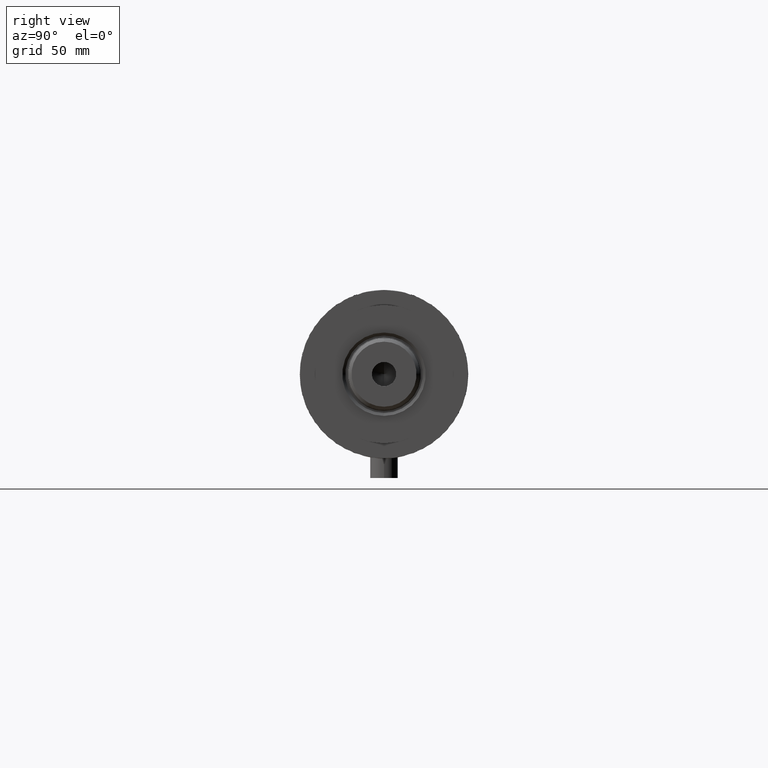
[diagram: clean part render]
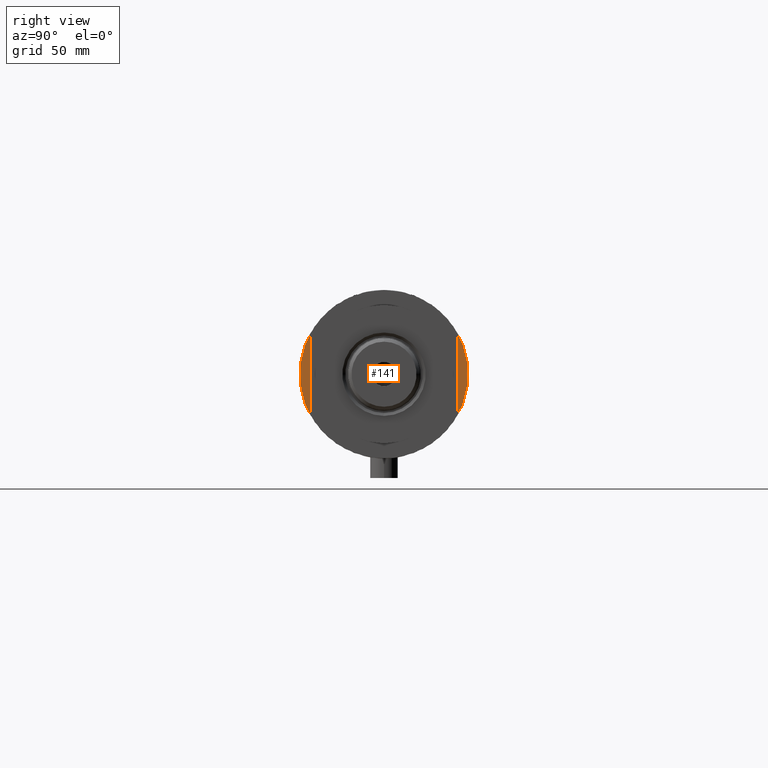
[diagram: same view with one face highlighted and labeled with its STEP entity id]
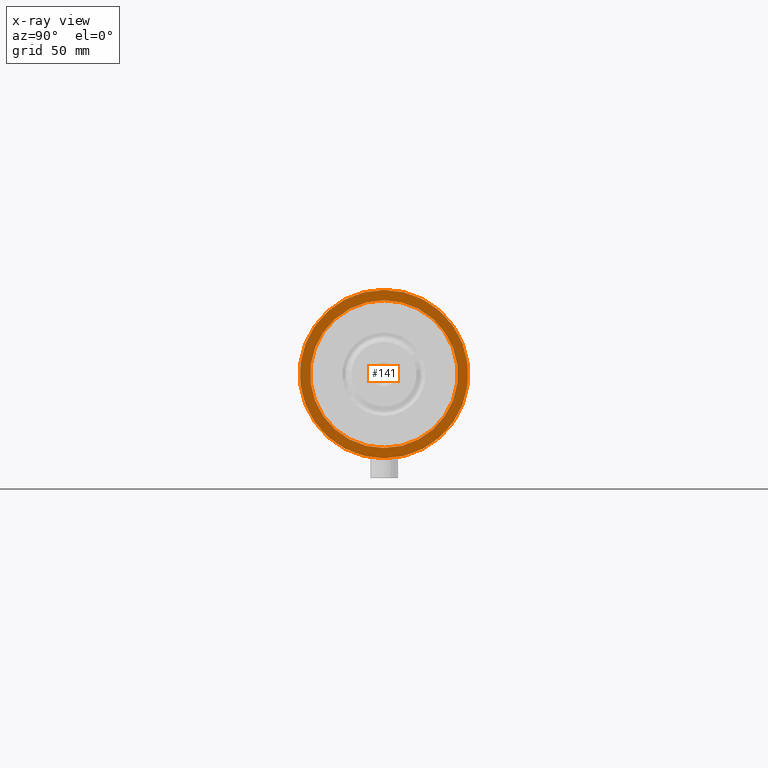
[diagram: x-ray of the same camera — body ghosted, the highlighted face saturated]
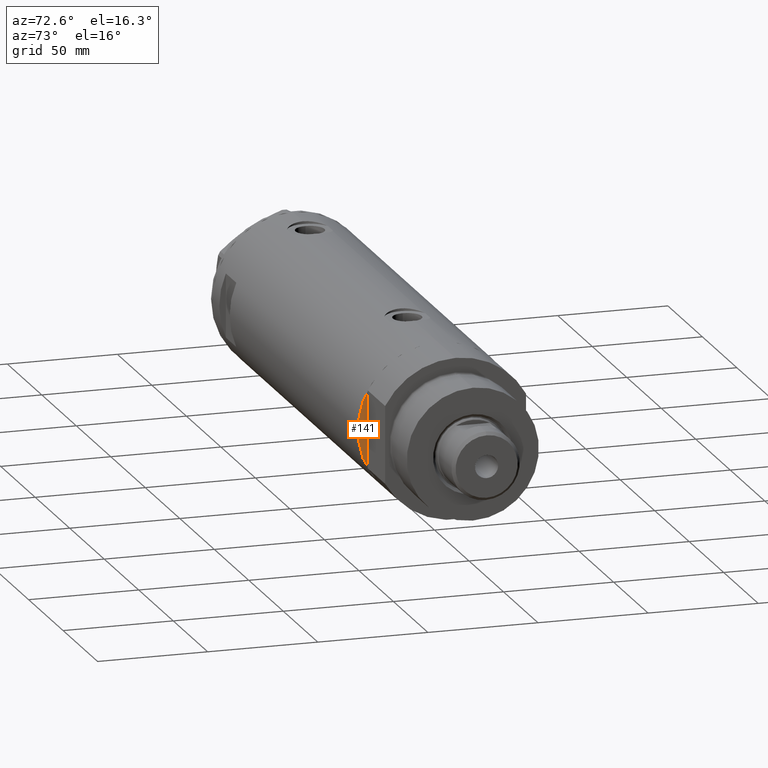
[diagram: same view with one face highlighted and labeled with its STEP entity id]
A machine part, right view. The second image highlights one B-rep face of the part: STEP entity #141.
The next image is the same camera in x-ray: the body ghosted, the highlighted face saturated — about 0% of this face is hidden behind the body in this view.
A second angle (auxiliary view) of the same face is appended — the face is thin or edge-on in the first view.
In plain terms, the highlighted planar face has unit normal (-1, -0, 0).
Its self-contained STEP definition (entity closure, byte-faithful):
#78 = DIRECTION ( 'NONE',  ( 0.000000000000000000, 0.000000000000000000, -1.000000000000000000 ) ) ;
#141 = ADVANCED_FACE ( 'NONE', ( #1531, #2898 ), #3718, .F. ) ;
#256 = DIRECTION ( 'NONE',  ( 1.000000000000000000, 0.000000000000000000, 0.000000000000000000 ) ) ;
#274 = CIRCLE ( 'NONE', #1847, 36.50000000000000000 ) ;
#290 = CARTESIAN_POINT ( 'NONE',  ( -36.50000000000000000, 4.469960816887837641E-15, -105.4000000000000057 ) ) ;
#382 = CARTESIAN_POINT ( 'NONE',  ( 0.000000000000000000, 0.000000000000000000, -105.4000000000000057 ) ) ;
#447 = EDGE_LOOP ( 'NONE', ( #2928, #2646 ) ) ;
#500 = EDGE_LOOP ( 'NONE', ( #1523, #4332 ) ) ;
#577 = EDGE_CURVE ( 'NONE', #622, #1936, #1773, .T. ) ;
#622 = VERTEX_POINT ( 'NONE', #2835 ) ;
#638 = AXIS2_PLACEMENT_3D ( 'NONE', #3190, #1114, #4172 ) ;
#726 = CIRCLE ( 'NONE', #3230, 32.00000000000000000 ) ;
#745 = EDGE_CURVE ( 'NONE', #1584, #1558, #3142, .T. ) ;
#754 = DIRECTION ( 'NONE',  ( -1.000000000000000000, 0.000000000000000000, 0.000000000000000000 ) ) ;
#783 = AXIS2_PLACEMENT_3D ( 'NONE', #4277, #927, #2566 ) ;
#927 = DIRECTION ( 'NONE',  ( 0.000000000000000000, 0.000000000000000000, 1.000000000000000000 ) ) ;
#939 = EDGE_CURVE ( 'NONE', #1558, #1584, #274, .T. ) ;
#1069 = AXIS2_PLACEMENT_3D ( 'NONE', #4438, #3008, #2684 ) ;
#1084 = CARTESIAN_POINT ( 'NONE',  ( 32.00000000000000000, 3.918869757271530263E-15, -105.4000000000000057 ) ) ;
#1114 = DIRECTION ( 'NONE',  ( 0.000000000000000000, 0.000000000000000000, -1.000000000000000000 ) ) ;
#1523 = ORIENTED_EDGE ( 'NONE', *, *, #577, .F. ) ;
#1531 = FACE_BOUND ( 'NONE', #500, .T. ) ;
#1558 = VERTEX_POINT ( 'NONE', #290 ) ;
#1584 = VERTEX_POINT ( 'NONE', #4056 ) ;
#1773 = CIRCLE ( 'NONE', #638, 32.00000000000000000 ) ;
#1847 = AXIS2_PLACEMENT_3D ( 'NONE', #3009, #2349, #256 ) ;
#1936 = VERTEX_POINT ( 'NONE', #1084 ) ;
#2349 = DIRECTION ( 'NONE',  ( 0.000000000000000000, 0.000000000000000000, 1.000000000000000000 ) ) ;
#2566 = DIRECTION ( 'NONE',  ( 1.000000000000000000, 0.000000000000000000, 0.000000000000000000 ) ) ;
#2646 = ORIENTED_EDGE ( 'NONE', *, *, #939, .F. ) ;
#2684 = DIRECTION ( 'NONE',  ( 1.000000000000000000, 0.000000000000000000, -0.000000000000000000 ) ) ;
#2835 = CARTESIAN_POINT ( 'NONE',  ( -32.00000000000000000, 0.000000000000000000, -105.4000000000000057 ) ) ;
#2898 = FACE_OUTER_BOUND ( 'NONE', #447, .T. ) ;
#2928 = ORIENTED_EDGE ( 'NONE', *, *, #745, .F. ) ;
#3008 = DIRECTION ( 'NONE',  ( 0.000000000000000000, 0.000000000000000000, 1.000000000000000000 ) ) ;
#3009 = CARTESIAN_POINT ( 'NONE',  ( 0.000000000000000000, 0.000000000000000000, -105.4000000000000057 ) ) ;
#3142 = CIRCLE ( 'NONE', #783, 36.50000000000000000 ) ;
#3190 = CARTESIAN_POINT ( 'NONE',  ( 0.000000000000000000, 0.000000000000000000, -105.4000000000000057 ) ) ;
#3230 = AXIS2_PLACEMENT_3D ( 'NONE', #382, #78, #754 ) ;
#3718 = PLANE ( 'NONE',  #1069 ) ;
#3959 = EDGE_CURVE ( 'NONE', #1936, #622, #726, .T. ) ;
#4056 = CARTESIAN_POINT ( 'NONE',  ( 36.50000000000000000, 0.000000000000000000, -105.4000000000000057 ) ) ;
#4172 = DIRECTION ( 'NONE',  ( -1.000000000000000000, 0.000000000000000000, 0.000000000000000000 ) ) ;
#4277 = CARTESIAN_POINT ( 'NONE',  ( 0.000000000000000000, 0.000000000000000000, -105.4000000000000057 ) ) ;
#4332 = ORIENTED_EDGE ( 'NONE', *, *, #3959, .F. ) ;
#4438 = CARTESIAN_POINT ( 'NONE',  ( 0.000000000000000000, 0.000000000000000000, -105.4000000000000057 ) ) ;